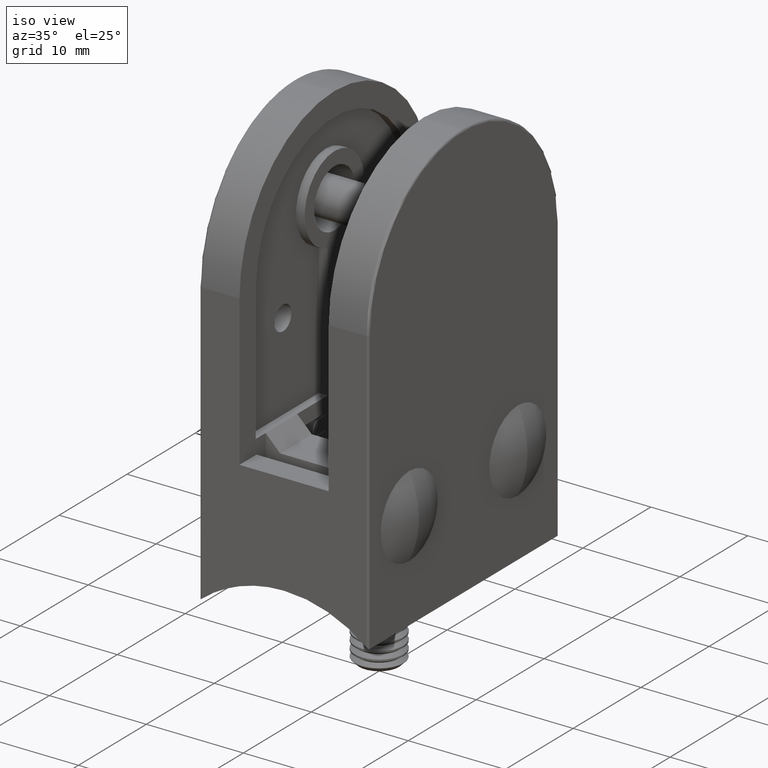
[diagram: clean part render]
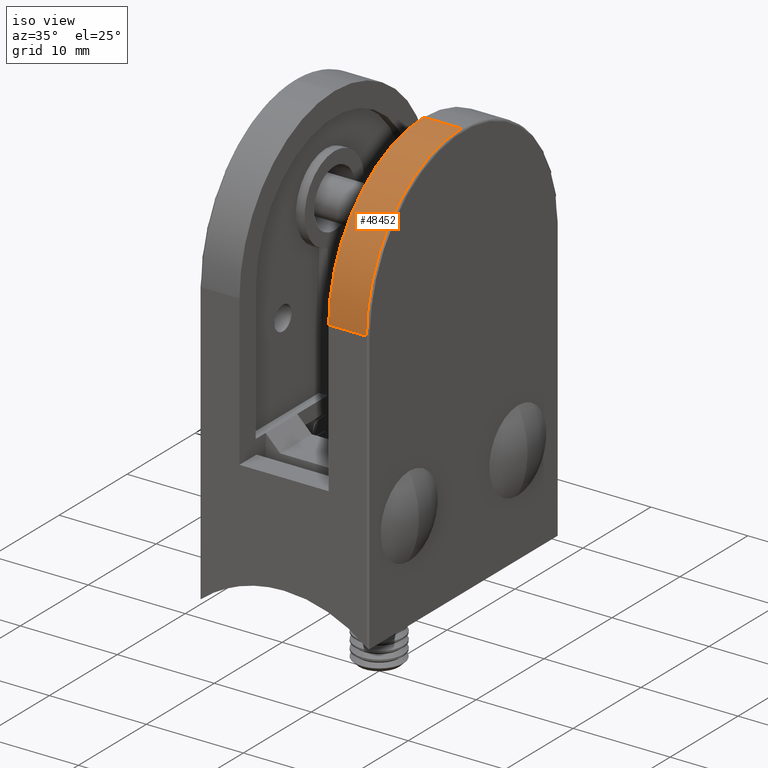
[diagram: same view with one face highlighted and labeled with its STEP entity id]
A machine part, iso view. The second image highlights one B-rep face of the part: STEP entity #48452.
In plain terms, the highlighted cylindrical surface (partial cylindrical patch) has radius 14 mm, axis along (1, 0, 0).
Its self-contained STEP definition (entity closure, byte-faithful):
#1272 = DIRECTION ( 'NONE',  ( 1.000000000000000000, 0.0000000000000000000, 0.0000000000000000000 ) ) ;
#3146 = VECTOR ( 'NONE', #8303, 1000.000000000000000 ) ;
#6436 = CARTESIAN_POINT ( 'NONE',  ( 4.099999999999999600, 13.99999999999999300, 25.99999999999999600 ) ) ;
#8240 = VERTEX_POINT ( 'NONE', #53060 ) ;
#8303 = DIRECTION ( 'NONE',  ( -1.000000000000000000, -0.0000000000000000000, -0.0000000000000000000 ) ) ;
#10470 = AXIS2_PLACEMENT_3D ( 'NONE', #16803, #57552, #43862 ) ;
#16803 = CARTESIAN_POINT ( 'NONE',  ( 4.099999999999999600, 0.0000000000000000000, 25.99999999999999600 ) ) ;
#16836 = VERTEX_POINT ( 'NONE', #31299 ) ;
#16985 = CIRCLE ( 'NONE', #42499, 13.99999999999999300 ) ;
#17728 = ORIENTED_EDGE ( 'NONE', *, *, #21012, .F. ) ;
#21012 = EDGE_CURVE ( 'NONE', #56488, #28967, #48468, .T. ) ;
#21605 = ORIENTED_EDGE ( 'NONE', *, *, #24442, .T. ) ;
#23463 = EDGE_LOOP ( 'NONE', ( #40715, #17728, #21605, #45860 ) ) ;
#24442 = EDGE_CURVE ( 'NONE', #56488, #16836, #29181, .T. ) ;
#28063 = DIRECTION ( 'NONE',  ( 0.0000000000000000000, 0.0000000000000000000, -1.000000000000000000 ) ) ;
#28967 = VERTEX_POINT ( 'NONE', #32897 ) ;
#29181 = LINE ( 'NONE', #6436, #46865 ) ;
#29474 = AXIS2_PLACEMENT_3D ( 'NONE', #31626, #35936, #31239 ) ;
#29967 = LINE ( 'NONE', #44789, #3146 ) ;
#31239 = DIRECTION ( 'NONE',  ( 0.0000000000000000000, 0.0000000000000000000, -1.000000000000000000 ) ) ;
#31299 = CARTESIAN_POINT ( 'NONE',  ( 0.2000000000000000900, 13.99999999999999300, 25.99999999999999600 ) ) ;
#31626 = CARTESIAN_POINT ( 'NONE',  ( 4.099999999999999600, 0.0000000000000000000, 25.99999999999999600 ) ) ;
#32897 = CARTESIAN_POINT ( 'NONE',  ( 4.099999999999999600, 0.0000000000000000000, 39.99999999999999300 ) ) ;
#35936 = DIRECTION ( 'NONE',  ( 1.000000000000000000, 0.0000000000000000000, 0.0000000000000000000 ) ) ;
#40421 = CYLINDRICAL_SURFACE ( 'NONE', #10470, 13.99999999999999100 ) ;
#40715 = ORIENTED_EDGE ( 'NONE', *, *, #55808, .F. ) ;
#41961 = DIRECTION ( 'NONE',  ( -1.000000000000000000, -0.0000000000000000000, -0.0000000000000000000 ) ) ;
#42499 = AXIS2_PLACEMENT_3D ( 'NONE', #54997, #1272, #28063 ) ;
#43862 = DIRECTION ( 'NONE',  ( 0.0000000000000000000, 0.0000000000000000000, 1.000000000000000000 ) ) ;
#44071 = FACE_OUTER_BOUND ( 'NONE', #23463, .T. ) ;
#44789 = CARTESIAN_POINT ( 'NONE',  ( 4.099999999999999600, 0.0000000000000000000, 39.99999999999998600 ) ) ;
#45860 = ORIENTED_EDGE ( 'NONE', *, *, #46485, .T. ) ;
#46485 = EDGE_CURVE ( 'NONE', #16836, #8240, #16985, .T. ) ;
#46865 = VECTOR ( 'NONE', #41961, 1000.000000000000000 ) ;
#48452 = ADVANCED_FACE ( 'NONE', ( #44071 ), #40421, .T. ) ;
#48468 = CIRCLE ( 'NONE', #29474, 13.99999999999999300 ) ;
#52331 = CARTESIAN_POINT ( 'NONE',  ( 4.099999999999999600, 13.99999999999999300, 25.99999999999999600 ) ) ;
#53060 = CARTESIAN_POINT ( 'NONE',  ( 0.2000000000000000900, 0.0000000000000000000, 39.99999999999999300 ) ) ;
#54997 = CARTESIAN_POINT ( 'NONE',  ( 0.2000000000000000900, 0.0000000000000000000, 25.99999999999999600 ) ) ;
#55808 = EDGE_CURVE ( 'NONE', #28967, #8240, #29967, .T. ) ;
#56488 = VERTEX_POINT ( 'NONE', #52331 ) ;
#57552 = DIRECTION ( 'NONE',  ( -1.000000000000000000, -0.0000000000000000000, -0.0000000000000000000 ) ) ;